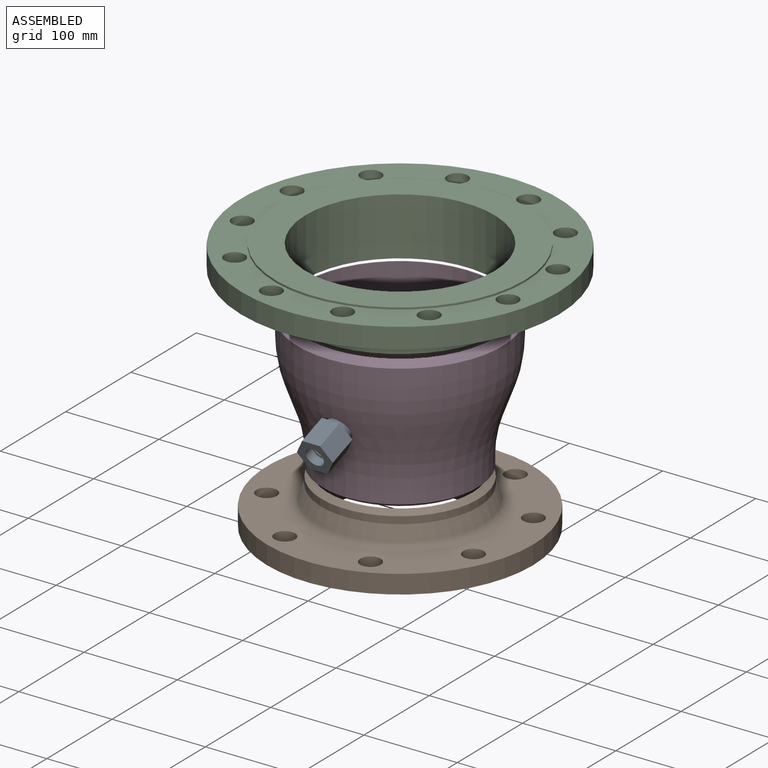
[diagram: assembled view]
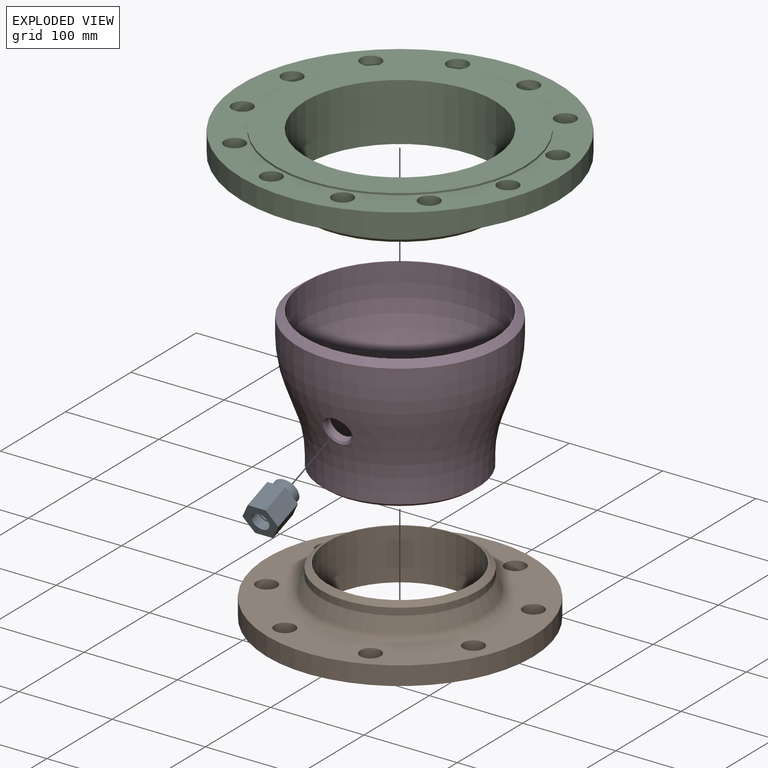
[diagram: exploded view]
GUIDED TOUR — MATED ASSEMBLY (Onshape document 519987b8de80882aed1ac16d, AutoMate assembly 519987b8de80882aed1ac16d_006c2c1638ef45f7be9becc3_8691957bd6f5f603d287772f_default)

This assembly has 4 components, labeled P0..P3 below (a component is one placed occurrence of a part; the same part can appear more than once), held together by 3 mates. A mate is a constraint between two components; its type names the relative motion it leaves free:
  FASTENED — locks the two components together rigidly (no relative motion).
Axis/direction vectors are unit vectors and 'through' points are millimeter coordinates, both in the assembly's world frame.

MATES
  1. FASTENED "Fastened 3": P0 <-> P3, direction (0.000, 0.940, 0.342) through (-1.33, -95.39, 133.27) mm
  2. FASTENED "Fastened 1": P3 <-> P1, direction (0.000, 0.000, -1.000) through (-1.33, -0.01, 60.23) mm
  3. FASTENED "Fastened 2": P2 <-> P3, direction (0.000, 0.000, -1.000) through (-1.33, -0.01, 216.43) mm

ASSEMBLY ORDER
  1. P3 — the base component [order verified]
  2. P0 [order verified]
  3. P1 [order verified]
  4. P2 [order verified]
(P0 verified with a relaxed clearance tolerance: the source model stores slight part interference there.)
Order-tag legend:
  [order verified] — this step's position reverses a verified removal order: the component was checked to insert without passing through the ones already placed.

Of the 4 components, 1 carries the full construction recipe — the FeatureScript program that regenerates the part's solid from scratch; the rest are supplied as boundary geometry only.
Each toured component is shown spotlighted twice — in the assembled view, then in the exploded view, where a leader line traces a displaced component back to its assembled socket (saturated green if recipe-attached, orange if geometry-only; every other component desaturated gray) — followed by its recipe or geometry summary and the mates that hold it.
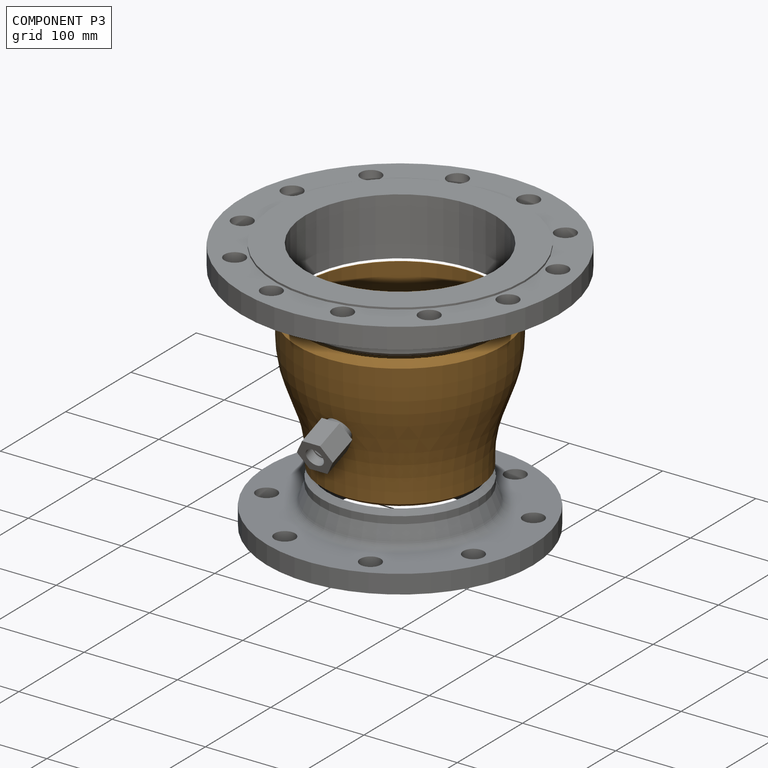
[diagram: component P3 — assembled]
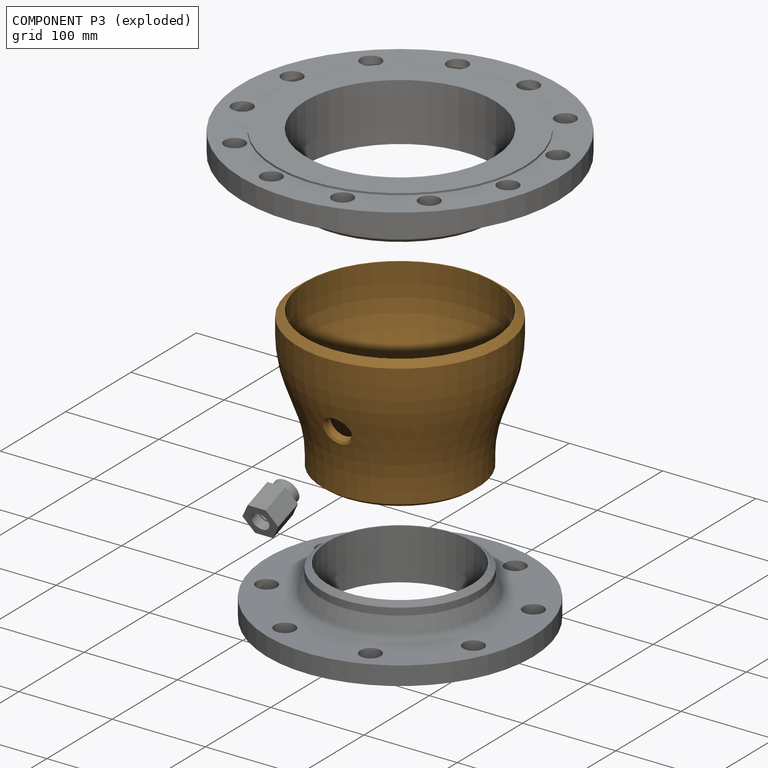
[diagram: component P3 — exploded]
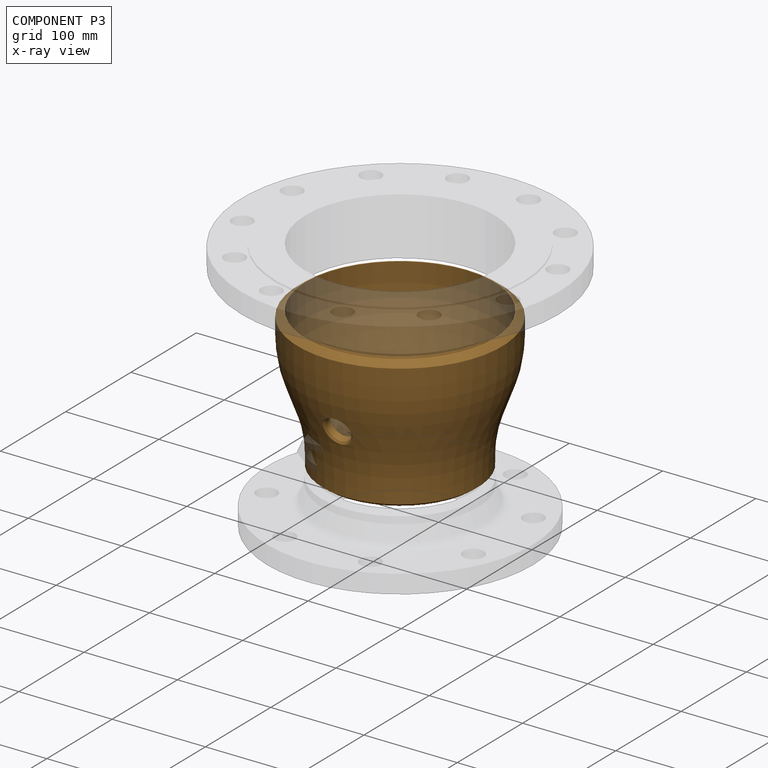
[diagram: component P3 — x-ray view]
COMPONENT P3 — geometry summary (no construction recipe available for this part):
  bounding box: 256.6 x 256.6 x 222.7 mm
  B-rep topology: 1 solid, 19 faces, 92 edges
  volume: 787459 mm^3 (5% of its bounding box)
  symmetry: mirror-symmetric across its y mid-plane
Held by: FASTENED mate "Fastened 3" to P0; FASTENED mate "Fastened 1" to P1; FASTENED mate "Fastened 2" to P2.
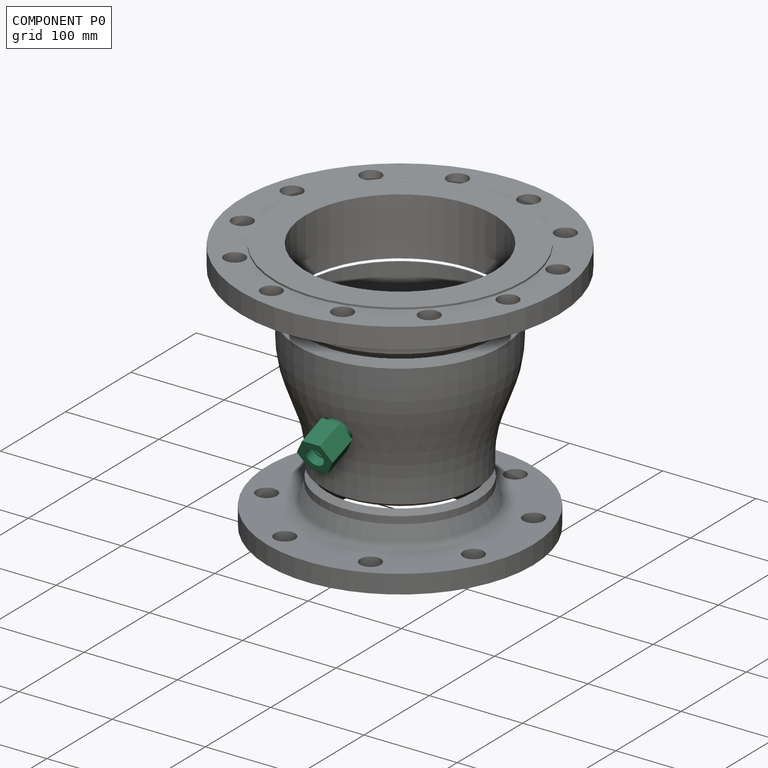
[diagram: component P0 — assembled]
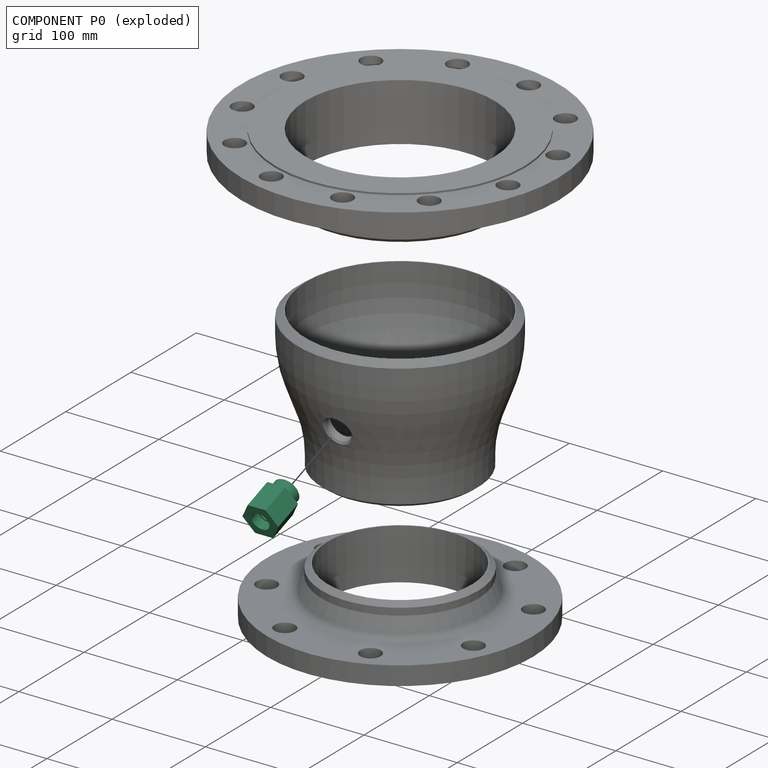
[diagram: component P0 — exploded]
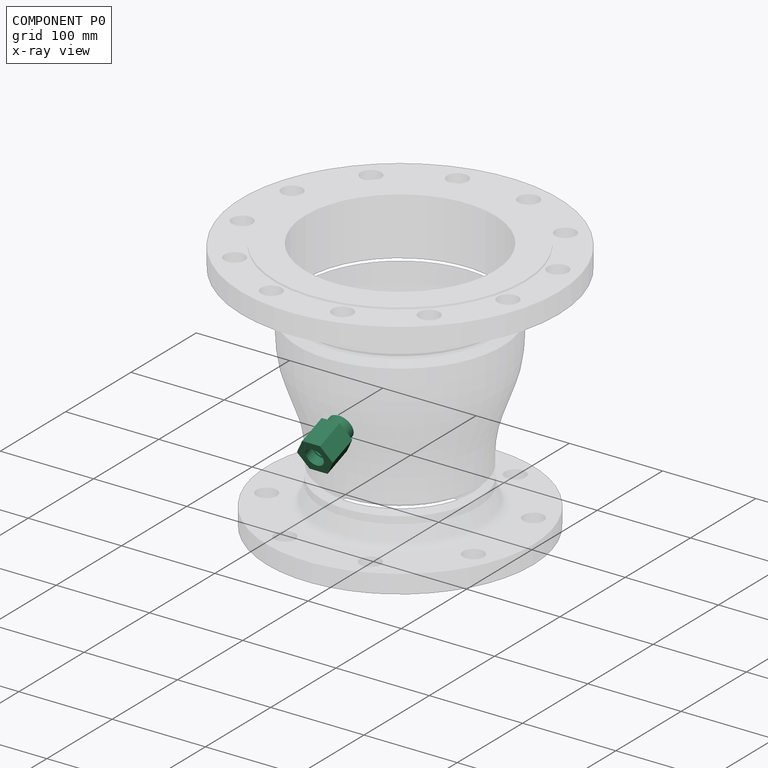
[diagram: component P0 — x-ray view]
COMPONENT P0 — recipe-attached (CADFS 00204385, mesh-verified: the recipe's output STEP matches this component's geometry to below the mesh-comparison resolution (tessellation chordal tolerance ~0.101 mm)).
Held by: FASTENED mate "Fastened 3" to P3.
Construction recipe (FeatureScript — the CAD program that rebuilds this solid; sketch coordinates are in the units given by the * unit suffixes, e.g. mm):

FeatureScript 1511;
import(path : "onshape/std/geometry.fs", version : "1511.0");
import(path : "onshape/std/common.fs", version : "1511.0");
const mm = millimeter;
const VERTEX = EntityType.VERTEX;
const EDGE = EntityType.EDGE;
const FACE = EntityType.FACE;
const BODY = EntityType.BODY;
function v(x, y){return vector(x, y);}
function OD(order){return orderDisambiguation(order);}
function OSD(set){return originalSetDisambiguation(set);}
function TD(topology){return topologyDisambiguation(topology);}
function TDD(query){return trueDependencyDisambiguation(query);}
function sQuery(a, b, c) {return sketchEntityQuery(a, b, c);}

annotation { "Feature Type Name" : "Feature", "Feature Type Description" : "" }
export const myFeature = defineFeature(function(context is Context, id is Id, definition is map)
    precondition{}
    {
        {
            var Q0;
            Q0=qCreatedBy(makeId("Front.planeOp"),FACE);
            var sketch = newSketch(context, id + "F0", { "sketchPlane" : qUnion([Q0])});
            skLineSegment(sketch, "E0", {"start": v(0, 0) * mm, "end": v(43.9, 0) * mm});
            skLineSegment(sketch, "E1", {"start": v(43.9, 9.53) * mm, "end": v(33.9, 9.52) * mm});
            skLineSegment(sketch, "E2", {"start": v(33.9, 9.52) * mm, "end": v(33.9, 8) * mm});
            skLineSegment(sketch, "E3", {"start": v(33.9, 8) * mm, "end": v(11.2, 8) * mm});
            skLineSegment(sketch, "E4", {"start": v(11.2, 8) * mm, "end": v(11.2, 9.52) * mm});
            skLineSegment(sketch, "E5", {"start": v(11.2, 9.52) * mm, "end": v(0, 9.52) * mm});
            skLineSegment(sketch, "E6", {"start": v(0, 9.52) * mm, "end": v(0, 13.22) * mm});
            skLineSegment(sketch, "E7", {"start": v(0, 13.22) * mm, "end": v(11.9, 13.22) * mm});
            skLineSegment(sketch, "E8", {"start": v(11.9, 13.22) * mm, "end": v(11.9, 20) * mm});
            skLineSegment(sketch, "E9", {"start": v(11.9, 20) * mm, "end": v(43.9, 20) * mm});
            skLineSegment(sketch, "E10", {"start": v(43.9, 20) * mm, "end": v(43.9, 9.53) * mm});
            skSolve(sketch);
        }
        {
            var Q0;
            Q0=makeQuery(id+"F0.imprint","IMPRINT",FACE,{"disambiguationData":[TD([[makeQuery(id+"F0.imprint","IMPRINT",EDGE,{"derivedFrom":sQuery(id+"F0.wireOp",EDGE,"E1")}),-1.0]])]});
            var Q1;
            Q1=sQuery(id+"F0.wireOp",EDGE,"E0");
            revolve(context, id + "F1", {"entities" : qUnion([Q0]), "axis" : qUnion([Q1]), "revolveType" : RevolveType.FULL});
        }
        {
            var Q0;
            Q0=makeQuery(id+"F1.opRevolve","SWEPT_FACE",FACE,{"disambiguationData":[OSD([sQuery(id+"F0.wireOp",EDGE,"E10")])]});
            var sketch = newSketch(context, id + "F2", { "sketchPlane" : qUnion([Q0])});
            skCircle(sketch, "E11.cCircle", {"center": v(0, 0) * mm, "radius": 19.25 * mm, "construction": true});
            skLineSegment(sketch, "E11.0", {"start": v(9.62, 16.67) * mm, "end": v(19.25, 0) * mm});
            skLineSegment(sketch, "E11.1", {"start": v(19.25, 0) * mm, "end": v(9.62, -16.67) * mm});
            skLineSegment(sketch, "E11.2", {"start": v(9.62, -16.67) * mm, "end": v(-9.62, -16.67) * mm});
            skLineSegment(sketch, "E11.3", {"start": v(-9.62, -16.67) * mm, "end": v(-19.25, 0) * mm});
            skLineSegment(sketch, "E11.4", {"start": v(-19.25, 0) * mm, "end": v(-9.62, 16.67) * mm});
            skLineSegment(sketch, "E11.5", {"start": v(-9.62, 16.67) * mm, "end": v(9.62, 16.67) * mm});
            skCircle(sketch, "E12", {"center": v(0, 0) * mm, "radius": 20 * mm});
            skSolve(sketch);
        }
        {
            var Q0;
            Q0 = qSketchRegion(id + "F2", true);
            extrude(context, id + "F3", {"entities" : qUnion([Q0]), "operationType" : NewBodyOperationType.REMOVE, "endBound" : BoundingType.THROUGH_ALL, "oppositeDirection" : true, "depth" : 25 * mm});
        }
        {
            var Q0;
            Q0=makeQuery(id+"F1.opRevolve","SWEPT_EDGE",EDGE,{"disambiguationData":[OSD([sQuery(id+"F0.wireOp",EDGE,"E6"),sQuery(id+"F0.wireOp",EDGE,"E7")])]});
            chamfer(context, id + "F4", {"entities" : qUnion([Q0]), "width" : 1 * mm, "tangentPropagation" : true});
        }
    });
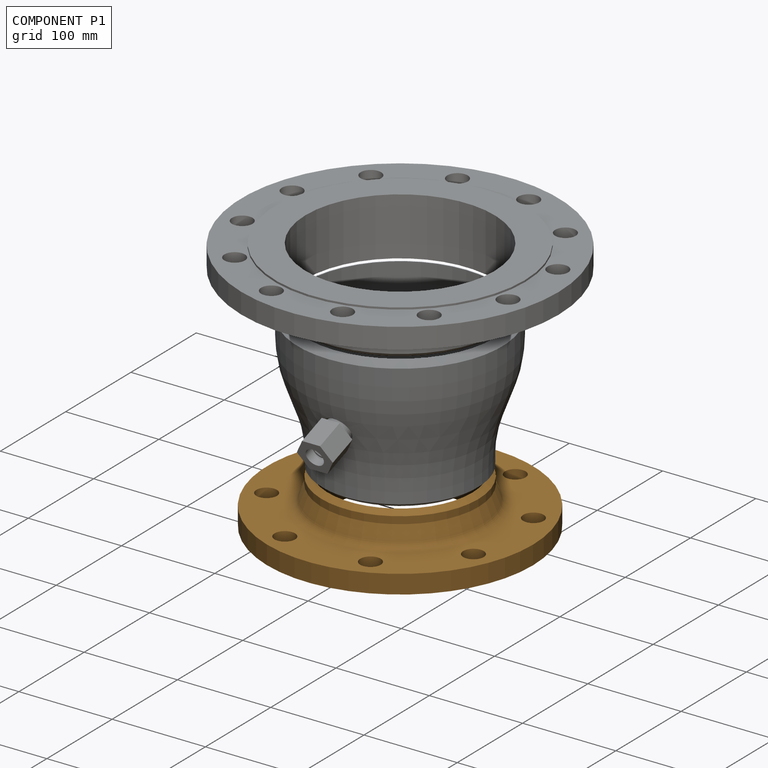
[diagram: component P1 — assembled]
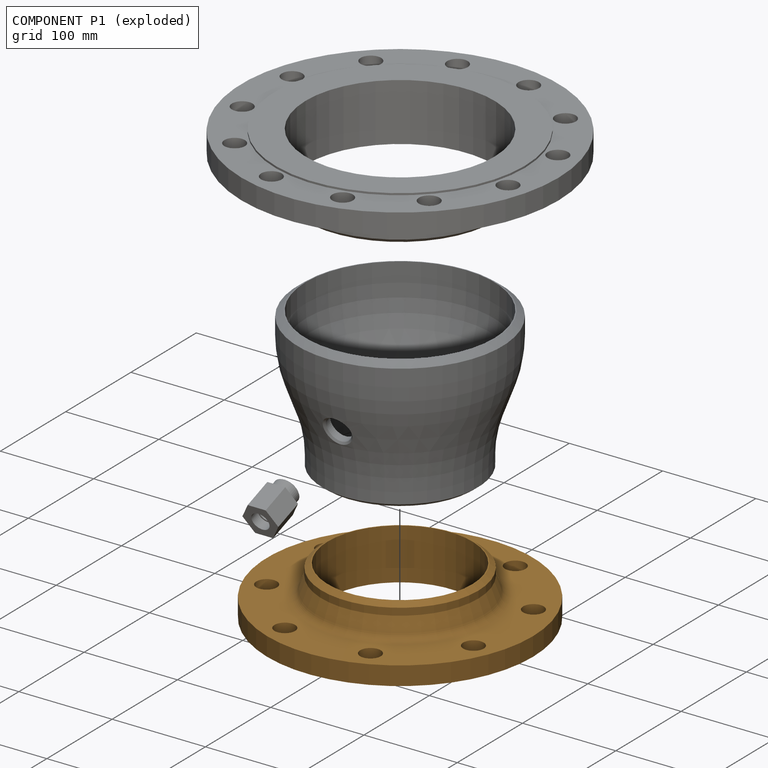
[diagram: component P1 — exploded]
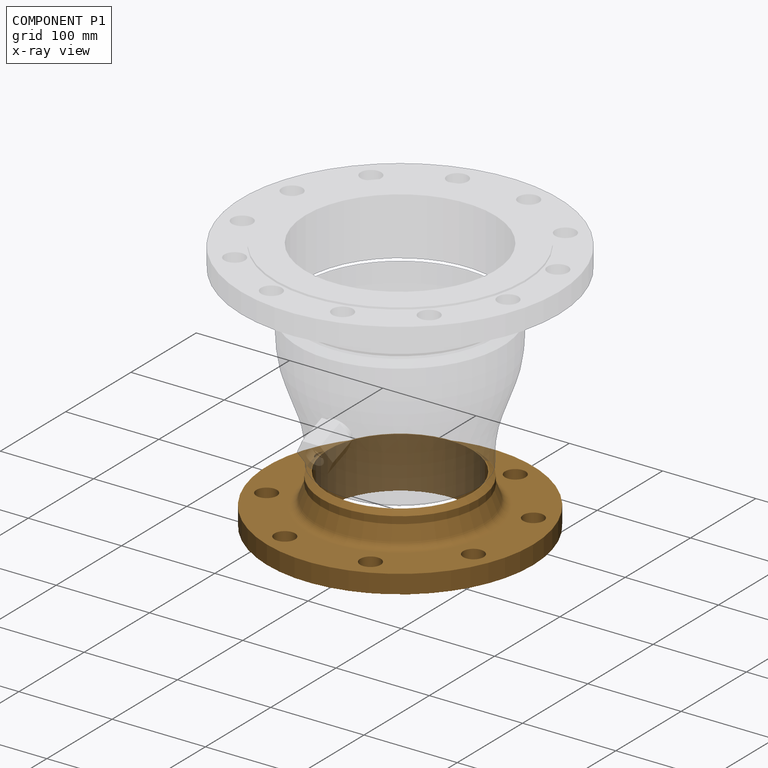
[diagram: component P1 — x-ray view]
COMPONENT P1 — geometry summary (no construction recipe available for this part):
  bounding box: 285.0 x 285.0 x 55.0 mm
  B-rep topology: 1 solid, 19 faces, 100 edges
  volume: 1025680 mm^3 (23% of its bounding box)
  symmetry: 4-fold rotationally symmetric about the z axis; mirror-symmetric across its x mid-plane, y mid-plane
Held by: FASTENED mate "Fastened 1" to P3.
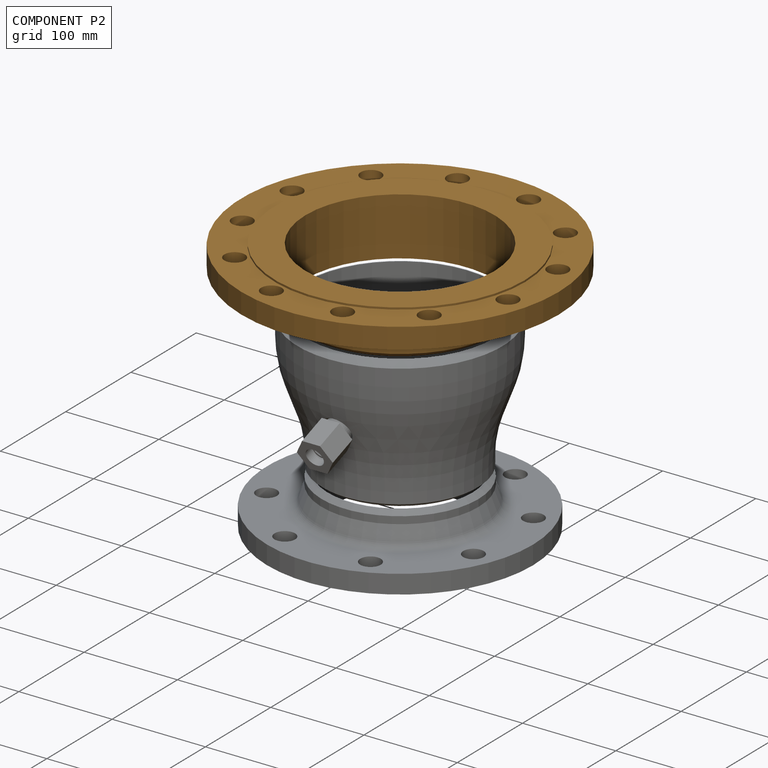
[diagram: component P2 — assembled]
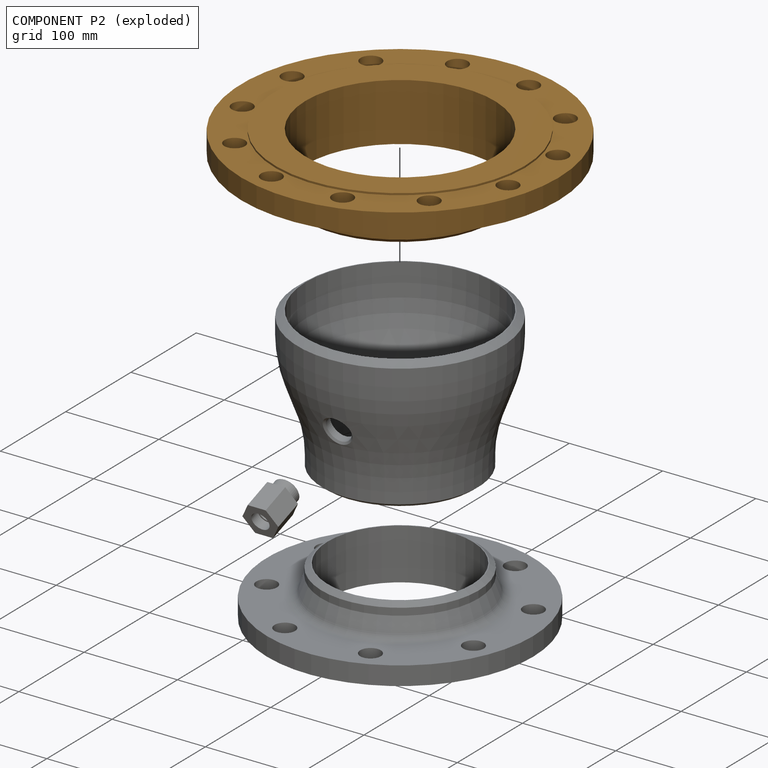
[diagram: component P2 — exploded]
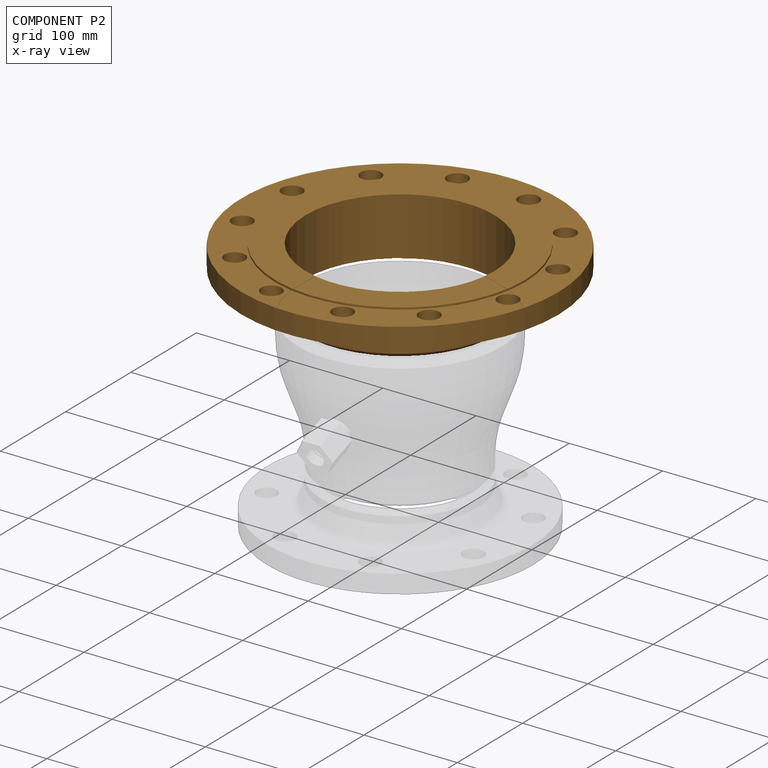
[diagram: component P2 — x-ray view]
COMPONENT P2 — geometry summary (no construction recipe available for this part):
  bounding box: 340.0 x 340.0 x 62.0 mm
  B-rep topology: 1 solid, 23 faces, 132 edges
  volume: 1498610 mm^3 (21% of its bounding box)
  symmetry: 6-fold rotationally symmetric about the z axis; mirror-symmetric across its x mid-plane, y mid-plane
Held by: FASTENED mate "Fastened 2" to P3.
PROVENANCE & LICENSES
Assembly (occurrences, transforms, mates, per-part STEP geometry): AutoMate dataset, Zenodo record 7776208, CC0.
Construction recipes: CADFS (HuggingFace VladPyatov/CADFS, CC-BY-4.0, layered over the ABC dataset), FeatureScript reconstruction programs keyed by ABC model id.
Join: ABC meta listings map ABC model id -> Onshape documentId; within a shared document, parts are matched by geometric signature (bounding-box dims + volume at 0.1% relative tolerance, exact B-rep face/solid counts).
Verification: 1 of this assembly's 4 components carries a recipe attachment, and every attachment is mesh-verified: the CADFS STEP and the AutoMate member STEP were compared as meshes in their shared local frame (symmetric sampled-point-to-mesh distance); worst across the 1 attachment: below the mesh-comparison resolution (tessellation chordal tolerance ~0.101 mm) on a 67 mm part.
Renders: orthographic iso camera (az 35 / el 25); the floor grid conveys scale (grid pitch printed in each image; no ruler). In the exploded view each component is displaced by its stored offset vector: the offsets alone carry the explosion direction (mate normal/axis signs are not orientation cues and do not encode it), and separation distances are assigned per mate-chain, not proportionally to assembly-order depth.
